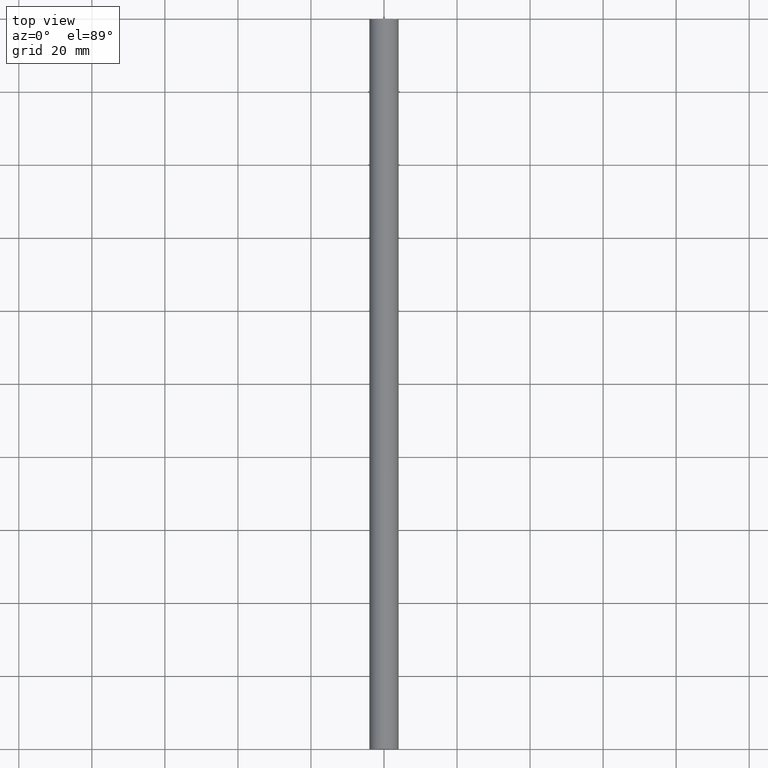
[diagram: clean part render]
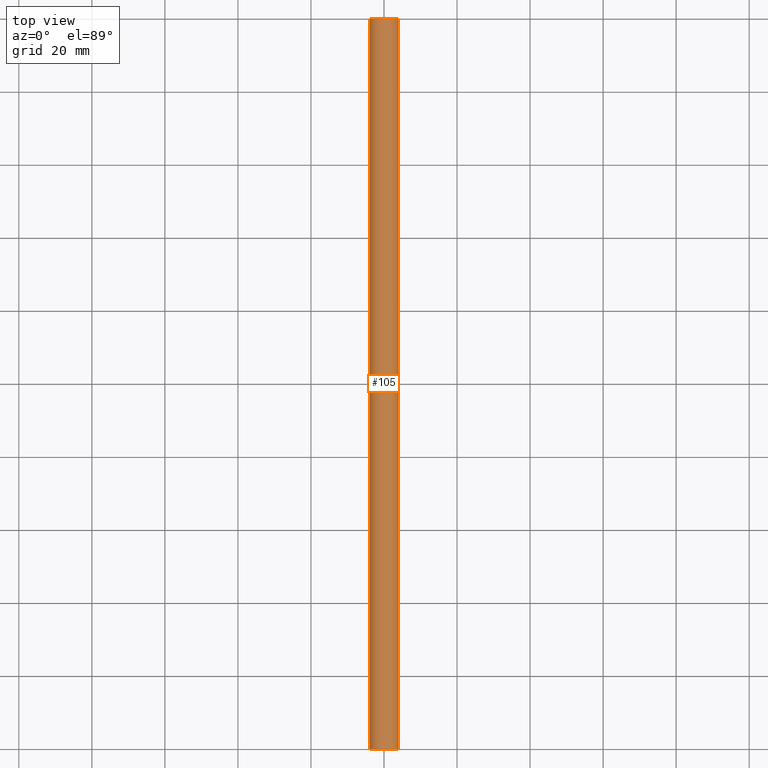
[diagram: same view with one face highlighted and labeled with its STEP entity id]
A machine part, top view. The second image highlights one B-rep face of the part: STEP entity #105.
In plain terms, the highlighted cylindrical surface (edge-blend (fillet) strip) has radius 4 mm, axis along (0, -1, 0).
Its self-contained STEP definition (entity closure, byte-faithful):
#10 = DIRECTION ( 'NONE',  ( -0.0000000000000000000, -1.000000000000000000, -0.0000000000000000000 ) ) ;
#27 = EDGE_LOOP ( 'NONE', ( #101, #95, #104, #181 ) ) ;
#39 = CARTESIAN_POINT ( 'NONE',  ( 4.000000000000000000, 200.0000000000000000, -0.5000000000000000000 ) ) ;
#40 = LINE ( 'NONE', #75, #137 ) ;
#42 = VERTEX_POINT ( 'NONE', #128 ) ;
#47 = DIRECTION ( 'NONE',  ( -0.0000000000000000000, -1.000000000000000000, -0.0000000000000000000 ) ) ;
#50 = CARTESIAN_POINT ( 'NONE',  ( 4.000000000000000000, 1000.000000000000000, -0.5000000000000000000 ) ) ;
#51 = DIRECTION ( 'NONE',  ( 0.0000000000000000000, -1.000000000000000000, 0.0000000000000000000 ) ) ;
#53 = VECTOR ( 'NONE', #62, 1000.000000000000000 ) ;
#54 = VERTEX_POINT ( 'NONE', #57 ) ;
#57 = CARTESIAN_POINT ( 'NONE',  ( -4.000000000000000000, 200.0000000000000000, -0.5000000000000000000 ) ) ;
#62 = DIRECTION ( 'NONE',  ( 0.0000000000000000000, -1.000000000000000000, 0.0000000000000000000 ) ) ;
#64 = DIRECTION ( 'NONE',  ( 0.0000000000000000000, 0.0000000000000000000, 1.000000000000000000 ) ) ;
#75 = CARTESIAN_POINT ( 'NONE',  ( -4.000000000000000000, 1000.000000000000000, -0.5000000000000000000 ) ) ;
#95 = ORIENTED_EDGE ( 'NONE', *, *, #236, .F. ) ;
#101 = ORIENTED_EDGE ( 'NONE', *, *, #159, .F. ) ;
#103 = VERTEX_POINT ( 'NONE', #113 ) ;
#104 = ORIENTED_EDGE ( 'NONE', *, *, #237, .T. ) ;
#105 = ADVANCED_FACE ( 'NONE', ( #201 ), #214, .T. ) ;
#111 = EDGE_CURVE ( 'NONE', #54, #42, #40, .T. ) ;
#113 = CARTESIAN_POINT ( 'NONE',  ( 4.000000000000000000, 0.0000000000000000000, -0.5000000000000000000 ) ) ;
#128 = CARTESIAN_POINT ( 'NONE',  ( -4.000000000000000000, 0.0000000000000000000, -0.5000000000000000000 ) ) ;
#131 = LINE ( 'NONE', #50, #53 ) ;
#137 = VECTOR ( 'NONE', #231, 1000.000000000000000 ) ;
#141 = VERTEX_POINT ( 'NONE', #39 ) ;
#145 = CIRCLE ( 'NONE', #235, 4.000000000000000000 ) ;
#153 = DIRECTION ( 'NONE',  ( 0.0000000000000000000, 0.0000000000000000000, 1.000000000000000000 ) ) ;
#159 = EDGE_CURVE ( 'NONE', #103, #42, #198, .T. ) ;
#181 = ORIENTED_EDGE ( 'NONE', *, *, #111, .T. ) ;
#188 = AXIS2_PLACEMENT_3D ( 'NONE', #228, #47, #64 ) ;
#191 = CARTESIAN_POINT ( 'NONE',  ( 0.0000000000000000000, 1000.000000000000000, -0.5000000000000000000 ) ) ;
#194 = DIRECTION ( 'NONE',  ( 0.0000000000000000000, 0.0000000000000000000, -1.000000000000000000 ) ) ;
#198 = CIRCLE ( 'NONE', #188, 4.000000000000000000 ) ;
#200 = AXIS2_PLACEMENT_3D ( 'NONE', #191, #51, #194 ) ;
#201 = FACE_OUTER_BOUND ( 'NONE', #27, .T. ) ;
#205 = CARTESIAN_POINT ( 'NONE',  ( 0.0000000000000000000, 200.0000000000000000, -0.5000000000000000000 ) ) ;
#214 = CYLINDRICAL_SURFACE ( 'NONE', #200, 4.000000000000000000 ) ;
#228 = CARTESIAN_POINT ( 'NONE',  ( 0.0000000000000000000, 0.0000000000000000000, -0.5000000000000000000 ) ) ;
#231 = DIRECTION ( 'NONE',  ( 0.0000000000000000000, -1.000000000000000000, 0.0000000000000000000 ) ) ;
#235 = AXIS2_PLACEMENT_3D ( 'NONE', #205, #10, #153 ) ;
#236 = EDGE_CURVE ( 'NONE', #141, #103, #131, .T. ) ;
#237 = EDGE_CURVE ( 'NONE', #141, #54, #145, .T. ) ;